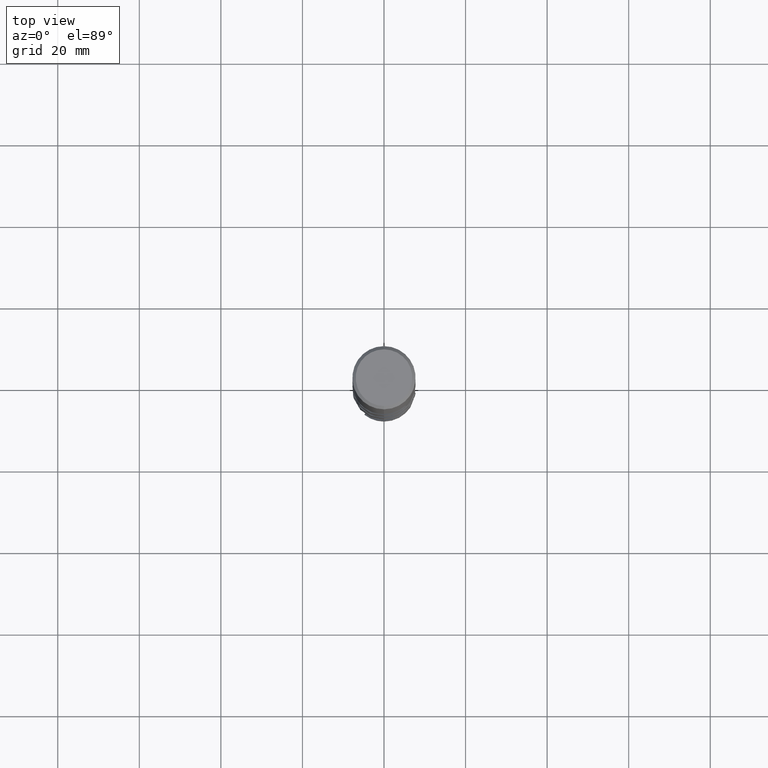
[diagram: clean part render]
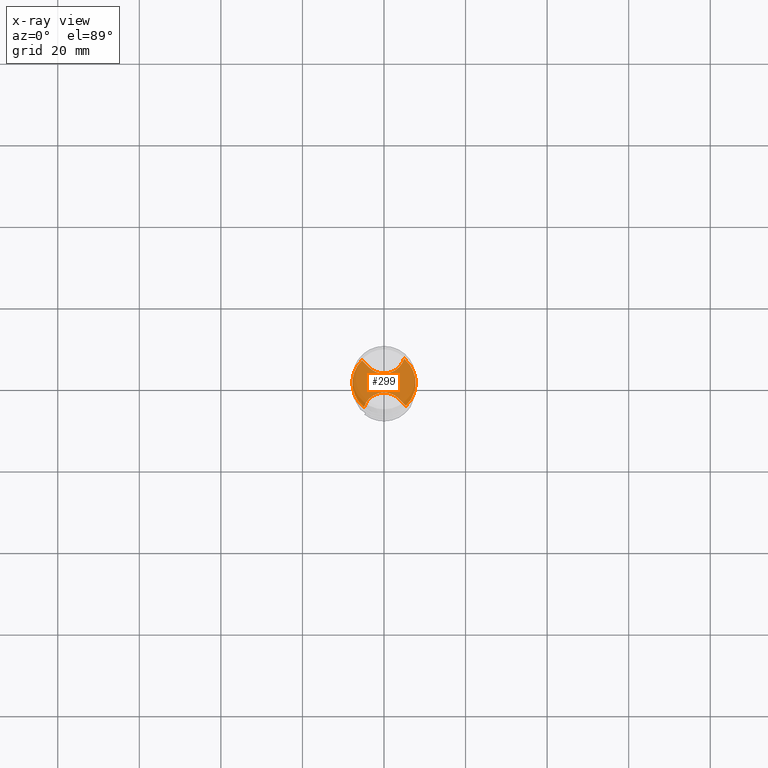
[diagram: x-ray — body ghosted, one internal face saturated and labeled with its STEP entity id]
A machine part, top view, then the same camera in x-ray: the body is ghosted and one INTERNAL B-rep face — a face not visible from any outside direction — is saturated and labeled: STEP entity #299.
In plain terms, the highlighted planar face has unit normal (-0, 0, 1).
Its self-contained STEP definition (entity closure, byte-faithful):
#299=ADVANCED_FACE('',(#778),#779,.T.);
#335=EDGE_CURVE('',#343,#519,#819,.T.);
#343=VERTEX_POINT('',#827);
#391=EDGE_CURVE('',#661,#711,#881,.T.);
#501=EDGE_CURVE('',#661,#679,#999,.T.);
#519=VERTEX_POINT('',#1020);
#547=EDGE_CURVE('',#711,#631,#1051,.T.);
#567=EDGE_CURVE('',#519,#679,#1072,.T.);
#589=EDGE_CURVE('',#343,#631,#1097,.T.);
#631=VERTEX_POINT('',#1141);
#661=VERTEX_POINT('',#1173);
#679=VERTEX_POINT('',#1192);
#711=VERTEX_POINT('',#1228);
#778=FACE_OUTER_BOUND('',#2288,.T.);
#779=PLANE('',#2289);
#819=B_SPLINE_CURVE_WITH_KNOTS('',3,(#2694,#2695,#2696,#2697,#2698,#2699,#2700,#2701,#2702,#2703,#2704,#2705,#2706,#2707,#2708,#2709),.UNSPECIFIED.,.F.,.F.,(4,2,2,2,2,2,2,4),(0.0,2.01826361242062,4.0363618946002,6.05443512637391,8.07260417320545,10.0909339019157,11.3039447910415,12.5169704015006),.UNSPECIFIED.);
#827=CARTESIAN_POINT('',(4.93600262874708,5.97468225590298,-77.1));
#881=B_SPLINE_CURVE_WITH_KNOTS('',3,(#3298,#3299,#3300,#3301,#3302,#3303,#3304,#3305,#3306,#3307,#3308,#3309,#3310,#3311,#3312,#3313),.UNSPECIFIED.,.F.,.F.,(4,2,2,2,2,2,2,4),(0.0,2.01826361242062,4.03636189460031,6.05443512637415,8.07260417320575,10.090933901916,11.3039447910419,12.516970401501),.UNSPECIFIED.);
#999=CIRCLE('',#5063,7.7499);
#1020=CARTESIAN_POINT('',(-3.65651003841681,3.83862173423944,-77.1));
#1051=B_SPLINE_CURVE_WITH_KNOTS('',3,(#5157,#5158,#5159,#5160),.UNSPECIFIED.,.F.,.F.,(4,4),(0.0,5.57697055742285),.UNSPECIFIED.);
#1072=B_SPLINE_CURVE_WITH_KNOTS('',3,(#5369,#5370,#5371,#5372),.UNSPECIFIED.,.F.,.F.,(4,4),(0.0,5.57697055762611),.UNSPECIFIED.);
#1097=CIRCLE('',#5573,7.7499);
#1141=CARTESIAN_POINT('',(5.38809880546628,-5.57039866369839,-77.1));
#1173=CARTESIAN_POINT('',(-4.93600262874708,-5.97468225590298,-77.1));
#1192=CARTESIAN_POINT('',(-5.38809880546628,5.57039866369839,-77.1));
#1228=CARTESIAN_POINT('',(3.65651003841681,-3.83862173423944,-77.1));
#2288=EDGE_LOOP('',(#7191,#7192,#7193,#7194,#7195,#7196));
#2289=AXIS2_PLACEMENT_3D('',#7197,#7198,#7199);
#2694=CARTESIAN_POINT('',(5.15432807083429,7.7999,-77.1));
#2695=CARTESIAN_POINT('',(5.19453742785044,7.12834815888899,-77.1));
#2696=CARTESIAN_POINT('',(5.10319514760842,6.45536592197357,-77.1));
#2697=CARTESIAN_POINT('',(4.66768450761435,5.18234938701118,-77.1));
#2698=CARTESIAN_POINT('',(4.32770237632321,4.59448593755882,-77.1));
#2699=CARTESIAN_POINT('',(3.44153491773547,3.58217428521826,-77.1));
#2700=CARTESIAN_POINT('',(2.90382827195224,3.1674067547676,-77.1));
#2701=CARTESIAN_POINT('',(1.69966416154247,2.56730522614885,-77.1));
#2702=CARTESIAN_POINT('',(1.04471689993618,2.38772109348336,-77.1));
#2703=CARTESIAN_POINT('',(-0.297206387615596,2.28969207401423,-77.1));
#2704=CARTESIAN_POINT('',(-0.971353623948964,2.37220508199167,-77.1));
#2705=CARTESIAN_POINT('',(-1.9949732023185,2.70743479816782,-77.1));
#2706=CARTESIAN_POINT('',(-2.36313333947028,2.87794672852332,-77.1));
#2707=CARTESIAN_POINT('',(-3.05214094012897,3.30130432429775,-77.1));
#2708=CARTESIAN_POINT('',(-3.37061327455316,3.55269194609651,-77.1));
#2709=CARTESIAN_POINT('',(-3.65651003841681,3.83862173423944,-77.1));
#3298=CARTESIAN_POINT('',(-5.15432807083429,-7.7999,-77.1));
#3299=CARTESIAN_POINT('',(-5.19453742785044,-7.128348158889,-77.1));
#3300=CARTESIAN_POINT('',(-5.10319514760842,-6.45536592197357,-77.1));
#3301=CARTESIAN_POINT('',(-4.66768450761434,-5.18234938701114,-77.1));
#3302=CARTESIAN_POINT('',(-4.32770237632319,-4.5944859375588,-77.1));
#3303=CARTESIAN_POINT('',(-3.44153491773547,-3.58217428521827,-77.1));
#3304=CARTESIAN_POINT('',(-2.90382827195226,-3.16740675476761,-77.1));
#3305=CARTESIAN_POINT('',(-1.69966416154247,-2.56730522614885,-77.1));
#3306=CARTESIAN_POINT('',(-1.04471689993618,-2.38772109348336,-77.1));
#3307=CARTESIAN_POINT('',(0.297206387615595,-2.28969207401423,-77.1));
#3308=CARTESIAN_POINT('',(0.971353623948962,-2.37220508199167,-77.1));
#3309=CARTESIAN_POINT('',(1.9949732023185,-2.70743479816782,-77.1));
#3310=CARTESIAN_POINT('',(2.36313333947028,-2.87794672852332,-77.1));
#3311=CARTESIAN_POINT('',(3.05214094012897,-3.30130432429775,-77.1));
#3312=CARTESIAN_POINT('',(3.37061327455315,-3.5526919460965,-77.1));
#3313=CARTESIAN_POINT('',(3.65651003841681,-3.83862173423944,-77.1));
#5063=AXIS2_PLACEMENT_3D('',#7446,#7447,#7448);
#5157=CARTESIAN_POINT('',(3.65651003848752,-3.83862173416874,-77.1));
#5158=CARTESIAN_POINT('',(4.97094686536797,-5.15319403688529,-77.1));
#5159=CARTESIAN_POINT('',(6.30197798973854,-6.48437823842554,-77.1));
#5160=CARTESIAN_POINT('',(7.61732555144431,-7.7999,-77.1));
#5369=CARTESIAN_POINT('',(-3.65651003848752,3.83862173416874,-77.1));
#5370=CARTESIAN_POINT('',(-4.97094686541588,5.1531940369332,-77.1));
#5371=CARTESIAN_POINT('',(-6.30197798976164,6.48437823844865,-77.1));
#5372=CARTESIAN_POINT('',(-7.61732555144431,7.7999,-77.1));
#5573=AXIS2_PLACEMENT_3D('',#7587,#7588,#7589);
#7191=ORIENTED_EDGE('',*,*,#547,.T.);
#7192=ORIENTED_EDGE('',*,*,#589,.F.);
#7193=ORIENTED_EDGE('',*,*,#335,.T.);
#7194=ORIENTED_EDGE('',*,*,#567,.T.);
#7195=ORIENTED_EDGE('',*,*,#501,.F.);
#7196=ORIENTED_EDGE('',*,*,#391,.T.);
#7197=CARTESIAN_POINT('',(0.0,3.87495,-77.1));
#7198=DIRECTION('',(-0.0,0.0,1.0));
#7199=DIRECTION('',(0.0,-1.0,0.0));
#7446=CARTESIAN_POINT('',(0.0,0.0,-77.1));
#7447=DIRECTION('',(0.0,0.0,-1.0));
#7448=DIRECTION('',(0.0,1.0,0.0));
#7587=CARTESIAN_POINT('',(0.0,0.0,-77.1));
#7588=DIRECTION('',(0.0,0.0,-1.0));
#7589=DIRECTION('',(0.0,1.0,0.0));